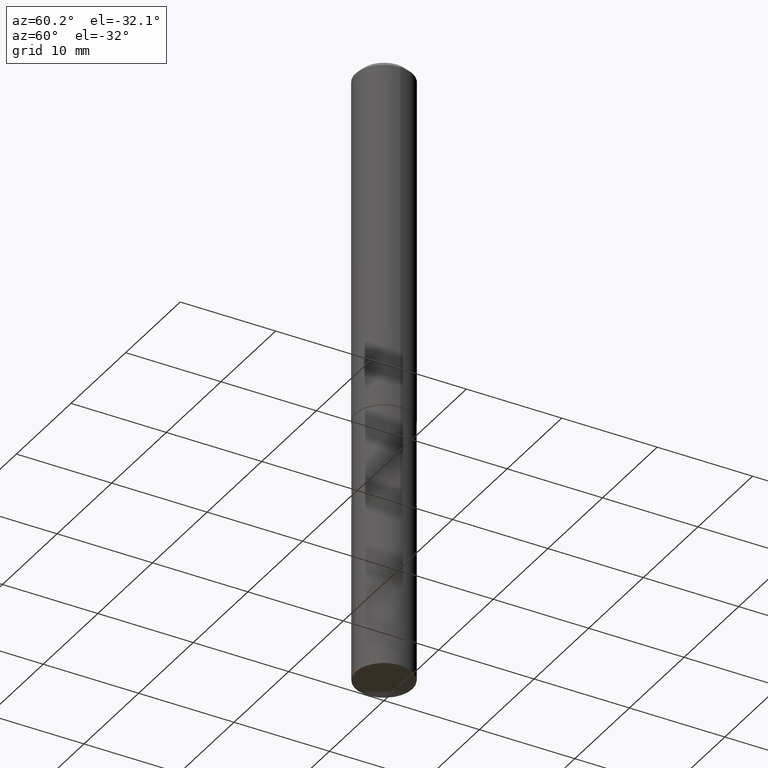
[diagram: clean part render]
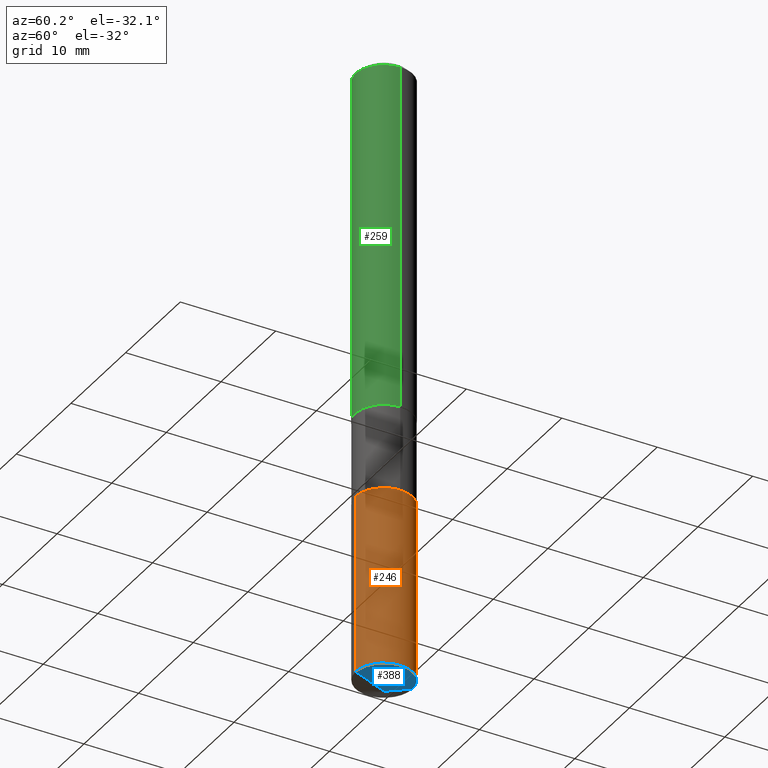
[diagram: same view with three faces highlighted in distinct colors, each labeled with its STEP entity id]
A machine part, auxiliary view with three faces highlighted in distinct colors.
Their STEP definitions:

[orange] entity #246 — the highlighted cylindrical surface (edge-blend (fillet) strip) has radius 2.9769 mm, axis along (-0, 0, 1).
#6 = CARTESIAN_POINT ( 'NONE',  ( -8.184032258247679381E-16, -0.1172000000000088804, -2.552233692257928510 ) ) ;
#18 = ORIENTED_EDGE ( 'NONE', *, *, #476, .T. ) ;
#26 = LINE ( 'NONE', #478, #310 ) ;
#36 = DIRECTION ( 'NONE',  ( -6.982962677686265922E-15, -1.000000000000000000, 4.661856644478264948E-15 ) ) ;
#43 = CIRCLE ( 'NONE', #289, 0.1171999999999999986 ) ;
#75 = ORIENTED_EDGE ( 'NONE', *, *, #107, .F. ) ;
#107 = EDGE_CURVE ( 'NONE', #374, #254, #381, .T. ) ;
#130 = DIRECTION ( 'NONE',  ( -6.982962677686265922E-15, -1.000000000000000000, 2.330928322239132474E-15 ) ) ;
#145 = VECTOR ( 'NONE', #147, 39.37007874015748143 ) ;
#147 = DIRECTION ( 'NONE',  ( -2.445866323305287994E-29, 3.490912071701818882E-15, 1.000000000000000000 ) ) ;
#158 = CARTESIAN_POINT ( 'NONE',  ( -8.184032258247860819E-16, -0.1172000000000063130, -1.810999999999999721 ) ) ;
#168 = AXIS2_PLACEMENT_3D ( 'NONE', #419, #202, #130 ) ;
#193 = ORIENTED_EDGE ( 'NONE', *, *, #209, .T. ) ;
#195 = DIRECTION ( 'NONE',  ( -6.982962677686265922E-15, -1.000000000000000000, 2.330928322239132474E-15 ) ) ;
#202 = DIRECTION ( 'NONE',  ( -2.445866323305288275E-29, 3.490912071701818882E-15, 1.000000000000000000 ) ) ;
#209 = EDGE_CURVE ( 'NONE', #325, #340, #43, .T. ) ;
#246 = ADVANCED_FACE ( 'NONE', ( #385 ), #347, .T. ) ;
#247 = LINE ( 'NONE', #484, #145 ) ;
#254 = VERTEX_POINT ( 'NONE', #418 ) ;
#281 = DIRECTION ( 'NONE',  ( -2.445866323305287994E-29, 3.490912071701818882E-15, 1.000000000000000000 ) ) ;
#289 = AXIS2_PLACEMENT_3D ( 'NONE', #378, #414, #36 ) ;
#310 = VECTOR ( 'NONE', #281, 39.37007874015748143 ) ;
#325 = VERTEX_POINT ( 'NONE', #6 ) ;
#340 = VERTEX_POINT ( 'NONE', #458 ) ;
#347 = CYLINDRICAL_SURFACE ( 'NONE', #353, 0.1171999999999999986 ) ;
#349 = EDGE_CURVE ( 'NONE', #325, #374, #247, .T. ) ;
#353 = AXIS2_PLACEMENT_3D ( 'NONE', #382, #456, #195 ) ;
#374 = VERTEX_POINT ( 'NONE', #158 ) ;
#378 = CARTESIAN_POINT ( 'NONE',  ( 6.241702533594187393E-29, -8.910654348900252712E-15, -2.552233692257928954 ) ) ;
#381 = CIRCLE ( 'NONE', #168, 0.1171999999999999986 ) ;
#382 = CARTESIAN_POINT ( 'NONE',  ( 4.428744008001282238E-29, -6.323072704644935995E-15, -1.810999999999999943 ) ) ;
#385 = FACE_OUTER_BOUND ( 'NONE', #486, .T. ) ;
#413 = ORIENTED_EDGE ( 'NONE', *, *, #349, .F. ) ;
#414 = DIRECTION ( 'NONE',  ( -2.445866323305288275E-29, 3.490912071701818882E-15, 1.000000000000000000 ) ) ;
#418 = CARTESIAN_POINT ( 'NONE',  ( 8.327560863108999253E-16, 0.1171999999999936842, -1.811000000000000165 ) ) ;
#419 = CARTESIAN_POINT ( 'NONE',  ( 4.428744008001282238E-29, -6.323072704644935995E-15, -1.810999999999999943 ) ) ;
#456 = DIRECTION ( 'NONE',  ( -2.445866323305288275E-29, 3.490912071701818882E-15, 1.000000000000000000 ) ) ;
#458 = CARTESIAN_POINT ( 'NONE',  ( 8.327560863108995309E-16, 0.1171999999999910891, -2.552233692257929398 ) ) ;
#476 = EDGE_CURVE ( 'NONE', #340, #254, #26, .T. ) ;
#478 = CARTESIAN_POINT ( 'NONE',  ( 8.327560863108815843E-16, 0.1171999999999936842, -1.811000000000000165 ) ) ;
#484 = CARTESIAN_POINT ( 'NONE',  ( -8.184032258247860819E-16, -0.1172000000000063130, -1.810999999999999721 ) ) ;
#486 = EDGE_LOOP ( 'NONE', ( #193, #18, #75, #413 ) ) ;

[blue] entity #388 — the highlighted conical surface has half-angle 68.5 deg.
#6 = CARTESIAN_POINT ( 'NONE',  ( -8.184032258247679381E-16, -0.1172000000000088804, -2.552233692257928510 ) ) ;
#32 = ORIENTED_EDGE ( 'NONE', *, *, #209, .F. ) ;
#36 = DIRECTION ( 'NONE',  ( -6.982962677686265922E-15, -1.000000000000000000, 4.661856644478264948E-15 ) ) ;
#43 = CIRCLE ( 'NONE', #289, 0.1171999999999999986 ) ;
#85 = LINE ( 'NONE', #238, #211 ) ;
#111 = DIRECTION ( 'NONE',  ( -6.982962677686265922E-15, -1.000000000000000000, 3.498627837350010928E-15 ) ) ;
#117 = EDGE_CURVE ( 'NONE', #437, #340, #85, .T. ) ;
#121 = LINE ( 'NONE', #200, #256 ) ;
#170 = EDGE_CURVE ( 'NONE', #437, #325, #121, .T. ) ;
#189 = EDGE_LOOP ( 'NONE', ( #240, #380, #32 ) ) ;
#200 = CARTESIAN_POINT ( 'NONE',  ( 6.353899247467270624E-29, -9.072847812695893785E-15, -2.598399999999999821 ) ) ;
#209 = EDGE_CURVE ( 'NONE', #325, #340, #43, .T. ) ;
#211 = VECTOR ( 'NONE', #311, 39.37007874015748854 ) ;
#238 = CARTESIAN_POINT ( 'NONE',  ( 6.355351679884375868E-29, -9.070785927110006461E-15, -2.598399999999999821 ) ) ;
#240 = ORIENTED_EDGE ( 'NONE', *, *, #170, .F. ) ;
#256 = VECTOR ( 'NONE', #451, 39.37007874015748143 ) ;
#261 = FACE_OUTER_BOUND ( 'NONE', #189, .T. ) ;
#289 = AXIS2_PLACEMENT_3D ( 'NONE', #378, #414, #36 ) ;
#311 = DIRECTION ( 'NONE',  ( 6.611014441532064222E-15, 0.9304175679820269051, 0.3665012267242910848 ) ) ;
#319 = CARTESIAN_POINT ( 'NONE',  ( 6.355339054476460416E-29, -9.070785927110006461E-15, -2.598399999999999821 ) ) ;
#325 = VERTEX_POINT ( 'NONE', #6 ) ;
#340 = VERTEX_POINT ( 'NONE', #458 ) ;
#346 = CONICAL_SURFACE ( 'NONE', #362, 99.94676754583977640, 1.195550537616118847 ) ;
#362 = AXIS2_PLACEMENT_3D ( 'NONE', #377, #412, #111 ) ;
#377 = CARTESIAN_POINT ( 'NONE',  ( -8.993933058545681115E-28, 1.283656662679639301E-13, 36.77167874015748339 ) ) ;
#378 = CARTESIAN_POINT ( 'NONE',  ( 6.241702533594187393E-29, -8.910654348900252712E-15, -2.552233692257928954 ) ) ;
#380 = ORIENTED_EDGE ( 'NONE', *, *, #117, .T. ) ;
#388 = ADVANCED_FACE ( 'NONE', ( #261 ), #346, .T. ) ;
#412 = DIRECTION ( 'NONE',  ( -2.445866323305288275E-29, 3.490912071701818882E-15, 1.000000000000000000 ) ) ;
#414 = DIRECTION ( 'NONE',  ( -2.445866323305288275E-29, 3.490912071701818882E-15, 1.000000000000000000 ) ) ;
#437 = VERTEX_POINT ( 'NONE', #319 ) ;
#451 = DIRECTION ( 'NONE',  ( -6.497071151882118258E-15, -0.9304175679820243516, 0.3665012267242976907 ) ) ;
#458 = CARTESIAN_POINT ( 'NONE',  ( 8.327560863108995309E-16, 0.1171999999999910891, -2.552233692257929398 ) ) ;

[green] entity #259 — the highlighted cylindrical surface (edge-blend (fillet) strip) has radius 2.9997 mm, axis along (-0, 0, 1).
#3 = EDGE_CURVE ( 'NONE', #216, #64, #41, .T. ) ;
#8 = CARTESIAN_POINT ( 'NONE',  ( 0.000000000000000000, 0.000000000000000000, 0.000000000000000000 ) ) ;
#20 = CIRCLE ( 'NONE', #226, 0.1181000000000001632 ) ;
#35 = VERTEX_POINT ( 'NONE', #343 ) ;
#41 = LINE ( 'NONE', #228, #144 ) ;
#58 = ORIENTED_EDGE ( 'NONE', *, *, #3, .F. ) ;
#62 = AXIS2_PLACEMENT_3D ( 'NONE', #8, #312, #463 ) ;
#64 = VERTEX_POINT ( 'NONE', #384 ) ;
#74 = CIRCLE ( 'NONE', #201, 0.1180999999999999966 ) ;
#88 = VERTEX_POINT ( 'NONE', #165 ) ;
#94 = CARTESIAN_POINT ( 'NONE',  ( 5.776197320209327532E-31, -8.246878922347559293E-17, -0.02362000000000014088 ) ) ;
#104 = EDGE_LOOP ( 'NONE', ( #58, #482, #368, #410 ) ) ;
#122 = CYLINDRICAL_SURFACE ( 'NONE', #62, 0.1181000000000000799 ) ;
#144 = VECTOR ( 'NONE', #430, 39.37007874015748143 ) ;
#165 = CARTESIAN_POINT ( 'NONE',  ( 0.1180999999999999966, -9.071566814582237199E-16, -0.02362000000000014088 ) ) ;
#201 = AXIS2_PLACEMENT_3D ( 'NONE', #94, #360, #286 ) ;
#213 = DIRECTION ( 'NONE',  ( -2.445468806185136877E-29, 3.491481338843145188E-15, 1.000000000000000000 ) ) ;
#216 = VERTEX_POINT ( 'NONE', #233 ) ;
#226 = AXIS2_PLACEMENT_3D ( 'NONE', #253, #291, #444 ) ;
#228 = CARTESIAN_POINT ( 'NONE',  ( -0.1181000000000000799, 8.391509709326788873E-16, -5.809262341591047988E-30 ) ) ;
#233 = CARTESIAN_POINT ( 'NONE',  ( -0.1181000000000001632, -4.258062635644427505E-15, -1.459899999999999531 ) ) ;
#245 = LINE ( 'NONE', #475, #389 ) ;
#253 = CARTESIAN_POINT ( 'NONE',  ( 3.570139910149679929E-29, -5.097213606577107280E-15, -1.459899999999999531 ) ) ;
#259 = ADVANCED_FACE ( 'NONE', ( #342 ), #122, .T. ) ;
#286 = DIRECTION ( 'NONE',  ( 1.000000000000000000, -6.982962677686266711E-15, 0.000000000000000000 ) ) ;
#291 = DIRECTION ( 'NONE',  ( -2.445468806185136597E-29, 3.491481338843145583E-15, 1.000000000000000000 ) ) ;
#312 = DIRECTION ( 'NONE',  ( -2.445468806185136597E-29, 3.491481338843145583E-15, 1.000000000000000000 ) ) ;
#342 = FACE_OUTER_BOUND ( 'NONE', #104, .T. ) ;
#343 = CARTESIAN_POINT ( 'NONE',  ( 0.1181000000000001632, -5.921901498811854753E-15, -1.459899999999999531 ) ) ;
#356 = EDGE_CURVE ( 'NONE', #216, #35, #20, .T. ) ;
#360 = DIRECTION ( 'NONE',  ( -2.445468806185136597E-29, 3.491481338843145583E-15, 1.000000000000000000 ) ) ;
#368 = ORIENTED_EDGE ( 'NONE', *, *, #467, .T. ) ;
#384 = CARTESIAN_POINT ( 'NONE',  ( -0.1180999999999999966, -1.750690226967611791E-15, -0.02362000000000014088 ) ) ;
#389 = VECTOR ( 'NONE', #213, 39.37007874015748143 ) ;
#410 = ORIENTED_EDGE ( 'NONE', *, *, #438, .F. ) ;
#430 = DIRECTION ( 'NONE',  ( -2.445468806185136877E-29, 3.491481338843145188E-15, 1.000000000000000000 ) ) ;
#438 = EDGE_CURVE ( 'NONE', #64, #88, #74, .T. ) ;
#444 = DIRECTION ( 'NONE',  ( 1.000000000000000000, -6.982962677686270655E-15, 0.000000000000000000 ) ) ;
#463 = DIRECTION ( 'NONE',  ( 1.000000000000000000, -6.982962677686266711E-15, 4.876176775795936353E-29 ) ) ;
#467 = EDGE_CURVE ( 'NONE', #35, #88, #245, .T. ) ;
#475 = CARTESIAN_POINT ( 'NONE',  ( 0.1181000000000000799, -8.246878922347486570E-16, 5.758764772215004644E-30 ) ) ;
#482 = ORIENTED_EDGE ( 'NONE', *, *, #356, .T. ) ;